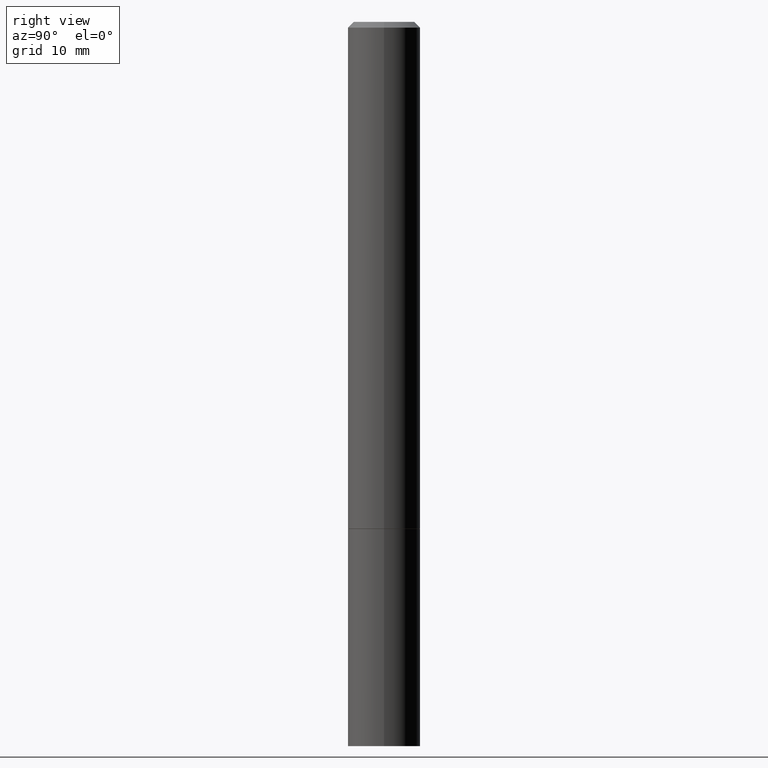
[diagram: clean part render]
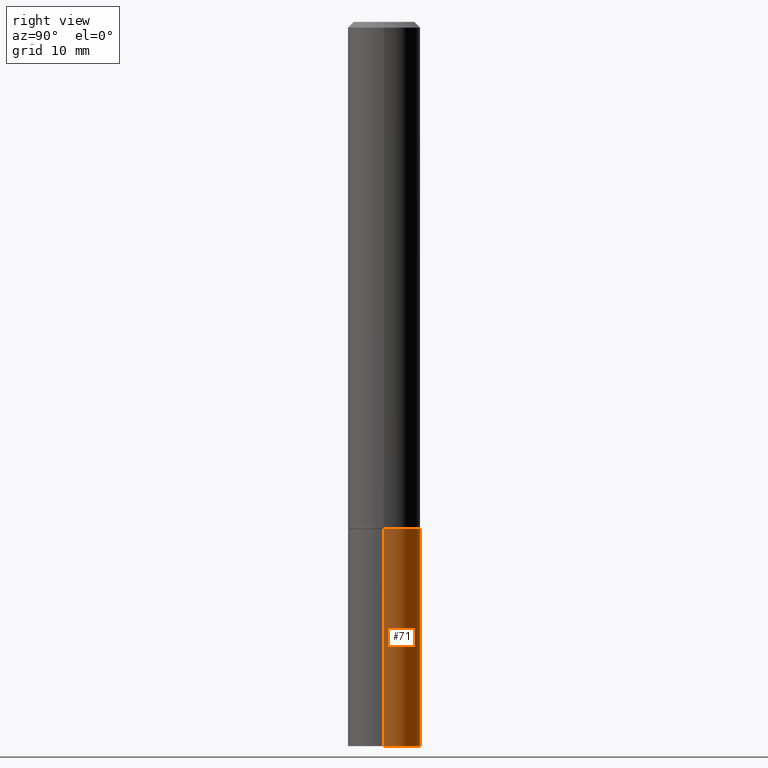
[diagram: same view with one face highlighted and labeled with its STEP entity id]
A machine part, right view. The second image highlights one B-rep face of the part: STEP entity #71.
In plain terms, the highlighted cylindrical surface (edge-blend (fillet) strip) has radius 3.175 mm, axis along (-0, 0, 1).
Its self-contained STEP definition (entity closure, byte-faithful):
#2 = VERTEX_POINT ( 'NONE', #36 ) ;
#4 = CARTESIAN_POINT ( 'NONE',  ( -0.1250000000000000000, 8.881784197001252323E-16, -6.148668862818632227E-30 ) ) ;
#5 = CARTESIAN_POINT ( 'NONE',  ( -0.1250000000000000000, -6.531219425341559180E-15, -2.500000000000000000 ) ) ;
#7 = EDGE_CURVE ( 'NONE', #94, #28, #207, .T. ) ;
#15 = VECTOR ( 'NONE', #338, 39.37007874015748143 ) ;
#24 = CARTESIAN_POINT ( 'NONE',  ( 6.113672015462842613E-29, -8.728703347107864943E-15, -2.500000000000000000 ) ) ;
#26 = ORIENTED_EDGE ( 'NONE', *, *, #84, .F. ) ;
#28 = VERTEX_POINT ( 'NONE', #313 ) ;
#31 = AXIS2_PLACEMENT_3D ( 'NONE', #75, #97, #99 ) ;
#36 = CARTESIAN_POINT ( 'NONE',  ( 0.1250000000000000000, -9.601573681818648281E-15, -2.500000000000000000 ) ) ;
#38 = LINE ( 'NONE', #148, #86 ) ;
#39 = CIRCLE ( 'NONE', #237, 0.1250000000000000000 ) ;
#56 = DIRECTION ( 'NONE',  ( -2.445468806185136597E-29, 3.491481338843145583E-15, 1.000000000000000000 ) ) ;
#62 = CARTESIAN_POINT ( 'NONE',  ( 4.279570410823989044E-29, -6.110092342975505460E-15, -1.750000000000000222 ) ) ;
#71 = ADVANCED_FACE ( 'NONE', ( #259 ), #230, .T. ) ;
#75 = CARTESIAN_POINT ( 'NONE',  ( 0.000000000000000000, 0.000000000000000000, 0.000000000000000000 ) ) ;
#84 = EDGE_CURVE ( 'NONE', #2, #310, #38, .T. ) ;
#86 = VECTOR ( 'NONE', #150, 39.37007874015748143 ) ;
#93 = ORIENTED_EDGE ( 'NONE', *, *, #260, .T. ) ;
#94 = VERTEX_POINT ( 'NONE', #5 ) ;
#97 = DIRECTION ( 'NONE',  ( -2.445468806185136597E-29, 3.491481338843145583E-15, 1.000000000000000000 ) ) ;
#99 = DIRECTION ( 'NONE',  ( 1.000000000000000000, -6.982962677686266711E-15, 4.876176775795935793E-29 ) ) ;
#118 = ORIENTED_EDGE ( 'NONE', *, *, #7, .T. ) ;
#143 = DIRECTION ( 'NONE',  ( 1.000000000000000000, -6.982962677686262766E-15, 0.000000000000000000 ) ) ;
#148 = CARTESIAN_POINT ( 'NONE',  ( 0.1250000000000000000, -8.728703347107833388E-16, 6.095220969744919741E-30 ) ) ;
#149 = AXIS2_PLACEMENT_3D ( 'NONE', #62, #56, #143 ) ;
#150 = DIRECTION ( 'NONE',  ( -2.445468806185136877E-29, 3.491481338843145188E-15, 1.000000000000000000 ) ) ;
#169 = ORIENTED_EDGE ( 'NONE', *, *, #251, .F. ) ;
#207 = LINE ( 'NONE', #4, #15 ) ;
#221 = EDGE_LOOP ( 'NONE', ( #93, #118, #169, #26 ) ) ;
#225 = DIRECTION ( 'NONE',  ( 1.000000000000000000, -6.982962677686270655E-15, 0.000000000000000000 ) ) ;
#230 = CYLINDRICAL_SURFACE ( 'NONE', #31, 0.1250000000000000000 ) ;
#237 = AXIS2_PLACEMENT_3D ( 'NONE', #24, #332, #225 ) ;
#251 = EDGE_CURVE ( 'NONE', #310, #28, #318, .T. ) ;
#259 = FACE_OUTER_BOUND ( 'NONE', #221, .T. ) ;
#260 = EDGE_CURVE ( 'NONE', #2, #94, #39, .T. ) ;
#310 = VERTEX_POINT ( 'NONE', #345 ) ;
#313 = CARTESIAN_POINT ( 'NONE',  ( -0.1250000000000000000, -6.531219425341559180E-15, -1.750000000000000222 ) ) ;
#318 = CIRCLE ( 'NONE', #149, 0.1250000000000000000 ) ;
#332 = DIRECTION ( 'NONE',  ( -2.445468806185136597E-29, 3.491481338843145583E-15, 1.000000000000000000 ) ) ;
#338 = DIRECTION ( 'NONE',  ( -2.445468806185136877E-29, 3.491481338843145188E-15, 1.000000000000000000 ) ) ;
#345 = CARTESIAN_POINT ( 'NONE',  ( 0.1250000000000000000, -6.982962677686288010E-15, -1.750000000000000222 ) ) ;